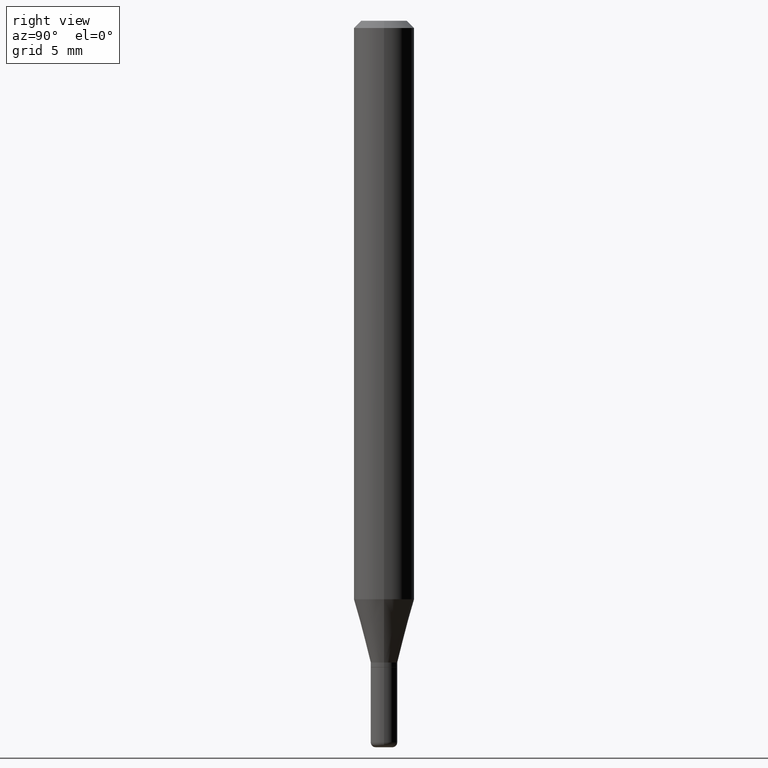
[diagram: clean part render]
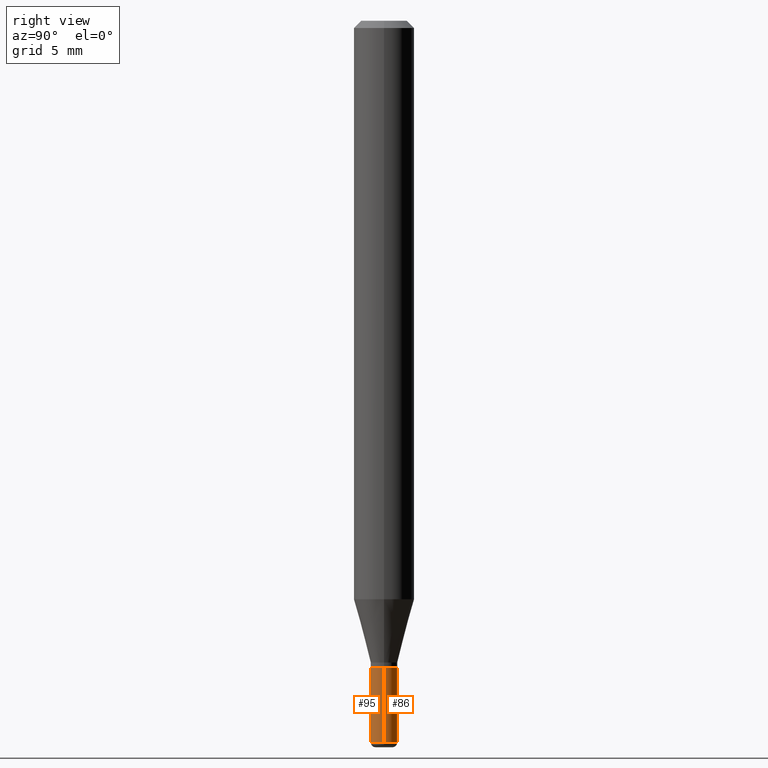
[diagram: same view with one multi-face feature highlighted, each face labeled with its STEP entity id]
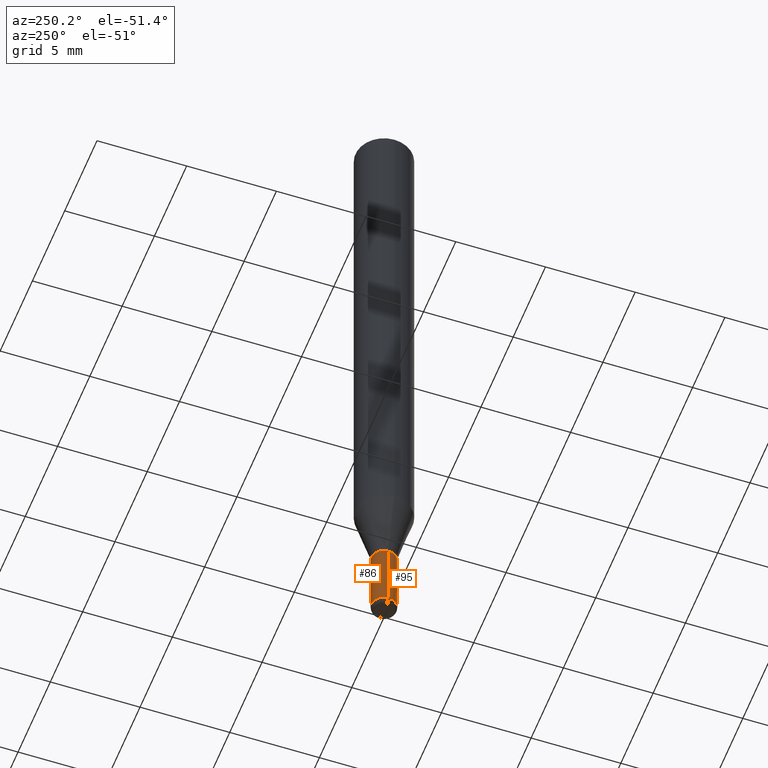
[diagram: same view with one multi-face feature highlighted, each face labeled with its STEP entity id]
A machine part, right view. The highlighted faces form ONE feature: a constant-radius fillet chain: 2 tangent blend faces with common blend radius 0.6985 mm. The faces share edges in the B-rep.
A second angle (auxiliary view) of the same feature is appended — it is thin or edge-on in the first view.
Their STEP definitions:
[1] entity #95 (Cylinder):
#14 = VERTEX_POINT ( 'NONE', #304 ) ;
#60 = DIRECTION ( 'NONE',  ( 1.000000000000000000, -6.982962677686258822E-15, 0.000000000000000000 ) ) ;
#71 = FACE_OUTER_BOUND ( 'NONE', #461, .T. ) ;
#79 = DIRECTION ( 'NONE',  ( -2.445468806185136877E-29, 3.491481338843145188E-15, 1.000000000000000000 ) ) ;
#89 = VERTEX_POINT ( 'NONE', #428 ) ;
#91 = LINE ( 'NONE', #405, #241 ) ;
#95 = ADVANCED_FACE ( 'NONE', ( #71 ), #233, .T. ) ;
#120 = CARTESIAN_POINT ( 'NONE',  ( 3.264700856257157760E-29, -4.661127587355599122E-15, -1.335000000000000187 ) ) ;
#140 = CARTESIAN_POINT ( 'NONE',  ( -0.02750000000000000014, -4.736318138781917467E-15, -1.335000000000000187 ) ) ;
#149 = EDGE_CURVE ( 'NONE', #14, #364, #193, .T. ) ;
#173 = AXIS2_PLACEMENT_3D ( 'NONE', #120, #361, #242 ) ;
#176 = ORIENTED_EDGE ( 'NONE', *, *, #149, .T. ) ;
#193 = LINE ( 'NONE', #356, #411 ) ;
#194 = DIRECTION ( 'NONE',  ( -2.445468806185136877E-29, 3.491481338843145188E-15, 1.000000000000000000 ) ) ;
#206 = CIRCLE ( 'NONE', #289, 0.02749999999999994463 ) ;
#217 = DIRECTION ( 'NONE',  ( -2.445468806185136597E-29, 3.491481338843145583E-15, 1.000000000000000000 ) ) ;
#219 = EDGE_CURVE ( 'NONE', #489, #364, #322, .T. ) ;
#233 = CYLINDRICAL_SURFACE ( 'NONE', #297, 0.02749999999999997238 ) ;
#241 = VECTOR ( 'NONE', #79, 39.37007874015748143 ) ;
#242 = DIRECTION ( 'NONE',  ( 1.000000000000000000, -6.982962677686279332E-15, 0.000000000000000000 ) ) ;
#289 = AXIS2_PLACEMENT_3D ( 'NONE', #454, #217, #60 ) ;
#297 = AXIS2_PLACEMENT_3D ( 'NONE', #385, #357, #422 ) ;
#304 = CARTESIAN_POINT ( 'NONE',  ( 0.02749999999999994463, -5.394338668512659809E-15, -1.490000000000000213 ) ) ;
#322 = CIRCLE ( 'NONE', #173, 0.02750000000000000014 ) ;
#333 = ORIENTED_EDGE ( 'NONE', *, *, #510, .T. ) ;
#334 = CARTESIAN_POINT ( 'NONE',  ( 0.02750000000000000014, -4.853159060991972403E-15, -1.335000000000000187 ) ) ;
#356 = CARTESIAN_POINT ( 'NONE',  ( 0.02749999999999997238, -1.920314736363721225E-16, 1.340948613343880837E-30 ) ) ;
#357 = DIRECTION ( 'NONE',  ( -2.445468806185136597E-29, 3.491481338843145583E-15, 1.000000000000000000 ) ) ;
#361 = DIRECTION ( 'NONE',  ( -2.445468806185136597E-29, 3.491481338843145583E-15, 1.000000000000000000 ) ) ;
#364 = VERTEX_POINT ( 'NONE', #334 ) ;
#380 = ORIENTED_EDGE ( 'NONE', *, *, #389, .F. ) ;
#385 = CARTESIAN_POINT ( 'NONE',  ( 0.000000000000000000, 0.000000000000000000, 0.000000000000000000 ) ) ;
#389 = EDGE_CURVE ( 'NONE', #89, #489, #91, .T. ) ;
#405 = CARTESIAN_POINT ( 'NONE',  ( -0.02749999999999997238, 1.953992523340273549E-16, -1.352707149820097605E-30 ) ) ;
#406 = ORIENTED_EDGE ( 'NONE', *, *, #219, .F. ) ;
#411 = VECTOR ( 'NONE', #194, 39.37007874015748143 ) ;
#422 = DIRECTION ( 'NONE',  ( 1.000000000000000000, -6.982962677686265922E-15, 4.876176775795935232E-29 ) ) ;
#428 = CARTESIAN_POINT ( 'NONE',  ( -0.02749999999999994463, -4.736318138781917467E-15, -1.490000000000000213 ) ) ;
#454 = CARTESIAN_POINT ( 'NONE',  ( 3.643748521215853910E-29, -5.202307194876288105E-15, -1.490000000000000213 ) ) ;
#461 = EDGE_LOOP ( 'NONE', ( #380, #333, #176, #406 ) ) ;
#489 = VERTEX_POINT ( 'NONE', #140 ) ;
#510 = EDGE_CURVE ( 'NONE', #89, #14, #206, .T. ) ;
[2] entity #86 (Cylinder):
#5 = DIRECTION ( 'NONE',  ( -2.445468806185136597E-29, 3.491481338843145583E-15, 1.000000000000000000 ) ) ;
#10 = EDGE_CURVE ( 'NONE', #364, #489, #157, .T. ) ;
#14 = VERTEX_POINT ( 'NONE', #304 ) ;
#47 = ORIENTED_EDGE ( 'NONE', *, *, #267, .T. ) ;
#79 = DIRECTION ( 'NONE',  ( -2.445468806185136877E-29, 3.491481338843145188E-15, 1.000000000000000000 ) ) ;
#86 = ADVANCED_FACE ( 'NONE', ( #508 ), #105, .T. ) ;
#88 = CARTESIAN_POINT ( 'NONE',  ( 3.643748521215853910E-29, -5.202307194876288105E-15, -1.490000000000000213 ) ) ;
#89 = VERTEX_POINT ( 'NONE', #428 ) ;
#91 = LINE ( 'NONE', #405, #241 ) ;
#96 = DIRECTION ( 'NONE',  ( 1.000000000000000000, -6.982962677686279332E-15, 0.000000000000000000 ) ) ;
#105 = CYLINDRICAL_SURFACE ( 'NONE', #196, 0.02749999999999997238 ) ;
#118 = DIRECTION ( 'NONE',  ( 1.000000000000000000, -6.982962677686258822E-15, 0.000000000000000000 ) ) ;
#140 = CARTESIAN_POINT ( 'NONE',  ( -0.02750000000000000014, -4.736318138781917467E-15, -1.335000000000000187 ) ) ;
#148 = CARTESIAN_POINT ( 'NONE',  ( 0.000000000000000000, 0.000000000000000000, 0.000000000000000000 ) ) ;
#149 = EDGE_CURVE ( 'NONE', #14, #364, #193, .T. ) ;
#157 = CIRCLE ( 'NONE', #288, 0.02750000000000000014 ) ;
#193 = LINE ( 'NONE', #356, #411 ) ;
#194 = DIRECTION ( 'NONE',  ( -2.445468806185136877E-29, 3.491481338843145188E-15, 1.000000000000000000 ) ) ;
#196 = AXIS2_PLACEMENT_3D ( 'NONE', #148, #271, #474 ) ;
#210 = ORIENTED_EDGE ( 'NONE', *, *, #149, .F. ) ;
#215 = CIRCLE ( 'NONE', #394, 0.02749999999999994463 ) ;
#241 = VECTOR ( 'NONE', #79, 39.37007874015748143 ) ;
#267 = EDGE_CURVE ( 'NONE', #14, #89, #215, .T. ) ;
#271 = DIRECTION ( 'NONE',  ( -2.445468806185136597E-29, 3.491481338843145583E-15, 1.000000000000000000 ) ) ;
#288 = AXIS2_PLACEMENT_3D ( 'NONE', #451, #301, #96 ) ;
#301 = DIRECTION ( 'NONE',  ( -2.445468806185136597E-29, 3.491481338843145583E-15, 1.000000000000000000 ) ) ;
#304 = CARTESIAN_POINT ( 'NONE',  ( 0.02749999999999994463, -5.394338668512659809E-15, -1.490000000000000213 ) ) ;
#334 = CARTESIAN_POINT ( 'NONE',  ( 0.02750000000000000014, -4.853159060991972403E-15, -1.335000000000000187 ) ) ;
#356 = CARTESIAN_POINT ( 'NONE',  ( 0.02749999999999997238, -1.920314736363721225E-16, 1.340948613343880837E-30 ) ) ;
#364 = VERTEX_POINT ( 'NONE', #334 ) ;
#376 = ORIENTED_EDGE ( 'NONE', *, *, #10, .F. ) ;
#389 = EDGE_CURVE ( 'NONE', #89, #489, #91, .T. ) ;
#394 = AXIS2_PLACEMENT_3D ( 'NONE', #88, #5, #118 ) ;
#397 = EDGE_LOOP ( 'NONE', ( #47, #444, #376, #210 ) ) ;
#405 = CARTESIAN_POINT ( 'NONE',  ( -0.02749999999999997238, 1.953992523340273549E-16, -1.352707149820097605E-30 ) ) ;
#411 = VECTOR ( 'NONE', #194, 39.37007874015748143 ) ;
#428 = CARTESIAN_POINT ( 'NONE',  ( -0.02749999999999994463, -4.736318138781917467E-15, -1.490000000000000213 ) ) ;
#444 = ORIENTED_EDGE ( 'NONE', *, *, #389, .T. ) ;
#451 = CARTESIAN_POINT ( 'NONE',  ( 3.264700856257157760E-29, -4.661127587355599122E-15, -1.335000000000000187 ) ) ;
#474 = DIRECTION ( 'NONE',  ( 1.000000000000000000, -6.982962677686265922E-15, 4.876176775795935232E-29 ) ) ;
#489 = VERTEX_POINT ( 'NONE', #140 ) ;
#508 = FACE_OUTER_BOUND ( 'NONE', #397, .T. ) ;